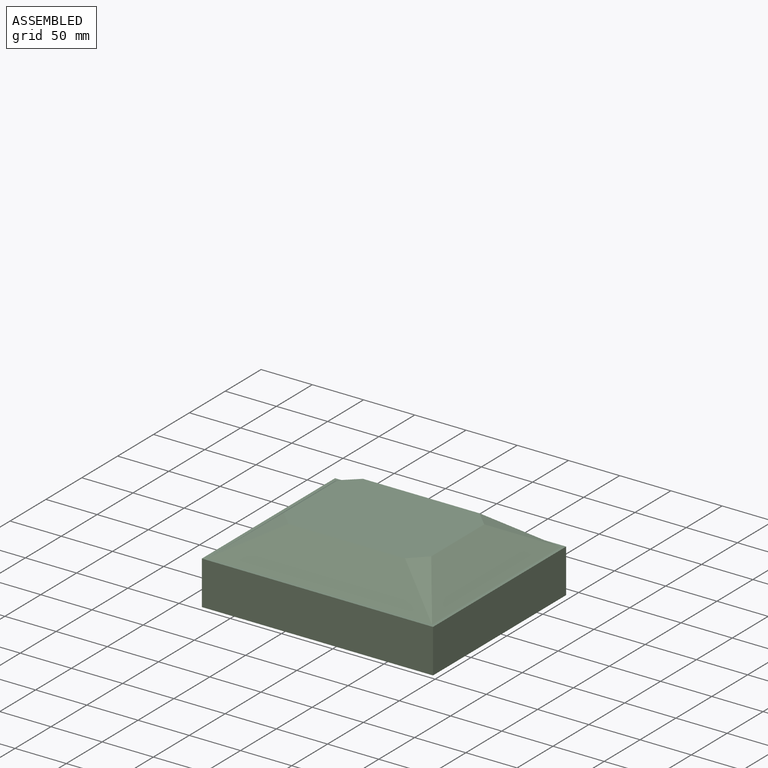
[diagram: assembled view]
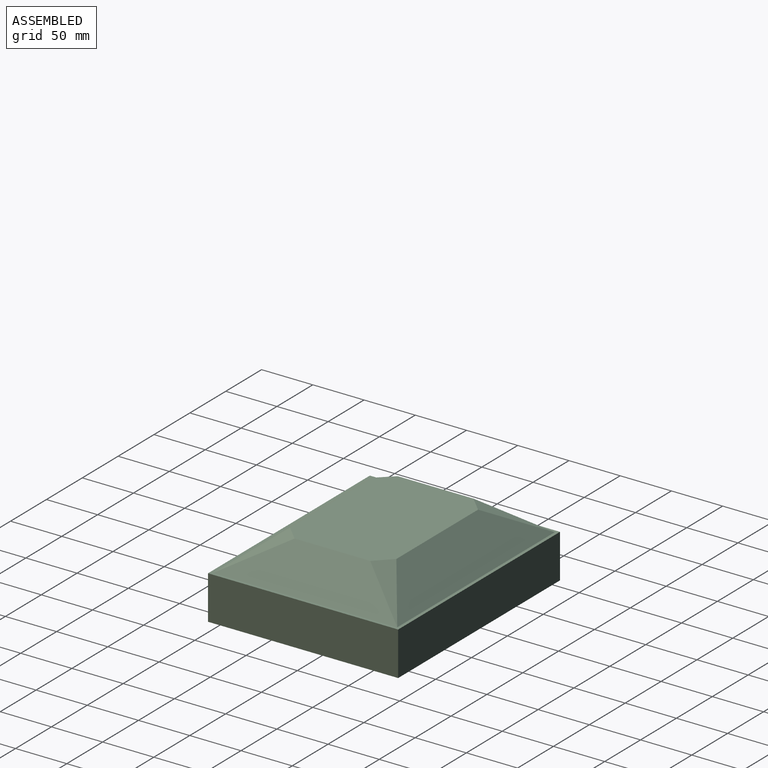
[diagram: assembled view, second angle]
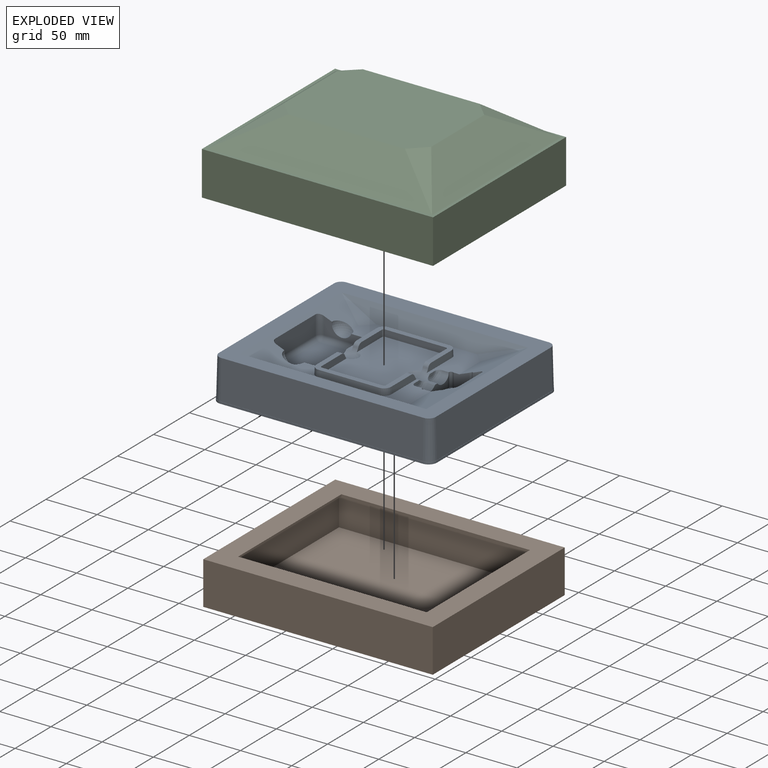
[diagram: exploded view]
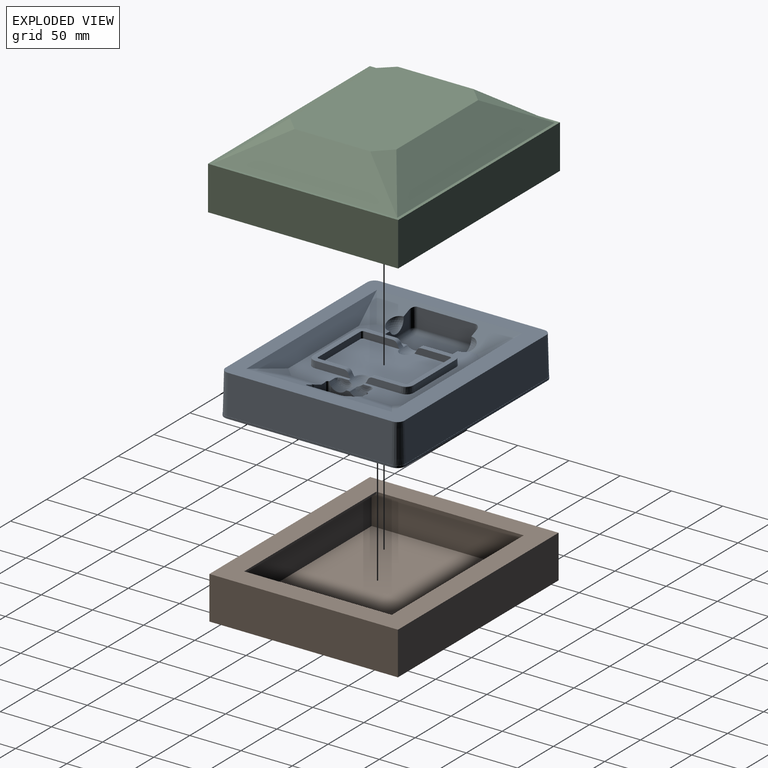
[diagram: exploded view, second angle]
ASSEMBLY  parts=3 mates=2
PART A: 249 faces, bbox 215.2x178.2x41.2 mm
  f0: plane 41x23mm, normal (0,0,1), area 831.1mm2, adj f99,f100,f101,f102,f103,f104,f105,f106
  f1: plane 119.91x53.15mm, normal (0,0,1), area 2299.3mm2, adj f3,f6,f16,f19,f22,f33,f35,f37
  f2: plane 119.91x53.15mm, normal (0,0,1), area 2299.3mm2, adj f3,f10,f16,f20,f23,f33,f34,f36
  f3: plane 142.85x32.38mm, normal (-0.37,0,0.93), area 3021.5mm2, adj f1,f2,f4,f5,f24,f38,f39,f84
  f4: plane 7.16x6.4mm, normal (0,-1,0.05), area 34.5mm2, adj f3,f7,f85,f103
  f5: plane 7.16x6.4mm, normal (0,1,0.05), area 34.5mm2, adj f3,f11,f84,f105
  f6: cylinder r=9.5mm len=16.57mm, axis (-1,0,0), area 148.4mm2, adj f1,f12,f94,f101,f107,f109
  f7: cylinder r=9.5mm len=16.88mm, axis (-1,0,0), area 162.7mm2, adj f4,f13,f93,f102,f103,f108
  f8: plane 7.19x3.07mm, normal (0,0,1), area 22.1mm2, adj f12,f14,f96,f107
  f9: plane 7.19x3.07mm, normal (0,0,1), area 22.1mm2, adj f13,f15,f91,f108
  f10: cylinder r=9.5mm len=16.57mm, axis (-1,0,0), area 148.4mm2, adj f2,f14,f98,f104,f107,f110
  f11: cylinder r=9.5mm len=16.88mm, axis (-1,0,0), area 162.7mm2, adj f5,f15,f89,f105,f106,f108
  f12: cylinder r=0.4mm len=7.19mm, axis (-1,0,0), area 2.6mm2, adj f6,f8,f95,f107
  f13: cylinder r=0.4mm len=7.19mm, axis (-1,0,0), area 2.6mm2, adj f7,f9,f92,f108
  f14: cylinder r=0.4mm len=7.19mm, axis (-1,0,0), area 2.6mm2, adj f8,f10,f97,f107
  f15: cylinder r=0.4mm len=7.19mm, axis (-1,0,0), area 2.6mm2, adj f9,f11,f90,f108
  f16: plane 56.24x8.23mm, normal (-1,0,0), area 433.4mm2, adj f1,f2,f49,f50,f54,f81
  f17: plane 34.86x6.47mm, normal (1,0,0), area 210.6mm2, adj f18,f64,f75,f80,f81
  f18: plane 73x35.06mm, normal (0,0,1), area 646.3mm2, adj f17,f19,f21,f22,f62,f63,f64,f70
  f19: plane 34.93x6.54mm, normal (-1,0,0.05), area 210.8mm2, adj f1,f18,f70,f80,f81
  f20: plane 34.93x6.54mm, normal (-1,0,0.05), area 210.8mm2, adj f2,f68,f69,f81,f82
  f21: plane 34.86x6.47mm, normal (-1,0,0), area 210.6mm2, adj f18,f62,f75,f76,f77
  f22: plane 34.93x6.54mm, normal (1,0,0.05), area 210.8mm2, adj f1,f18,f73,f76,f77
  f23: plane 34.93x6.54mm, normal (1,0,0.05), area 210.8mm2, adj f2,f68,f74,f77,f78
  f24: plane 211.61x174.61mm, normal (0,0,1), area 11063.1mm2, adj f3,f25,f26,f27,f28,f29,f30,f31
  f25: cone r=8mm half-angle=1.5deg, axis (0,0,-1), area 448mm2, adj f24,f26,f32,f119
  f26: plane 197.6x38mm, normal (0,-1,0.03), area 7511.4mm2, adj f24,f25,f27,f119
  f27: cone r=8mm half-angle=1.5deg, axis (0,0,-1), area 448mm2, adj f24,f26,f28,f119
  f28: plane 160.6x38mm, normal (1,0,0.03), area 6104.9mm2, adj f24,f27,f29,f119
  f29: cone r=8mm half-angle=1.5deg, axis (0,0,-1), area 448mm2, adj f24,f28,f30,f119
  f30: plane 197.6x38mm, normal (0,1,0.03), area 7511.4mm2, adj f24,f29,f31,f119
  f31: cone r=8mm half-angle=1.5deg, axis (0,0,-1), area 448mm2, adj f24,f30,f32,f119
  f32: plane 160.6x38mm, normal (-1,0,0.03), area 6104.9mm2, adj f24,f25,f31,f119
  f33: plane 142.81x32.34mm, normal (0.37,0,0.93), area 1913mm2, adj f1,f2,f24,f36,f37,f40,f41,f42
  f34: plane 182x12.47mm, normal (0,0.73,0.68), area 2399.2mm2, adj f2,f24,f36,f38
  f35: plane 182x12.47mm, normal (0,-0.73,0.68), area 2399.2mm2, adj f1,f24,f37,f39
  f36: plane 41.61x21.77mm, normal (0.22,0.22,0.95), area 282.9mm2, adj f2,f33,f34
  f37: plane 41.61x21.77mm, normal (0.22,-0.22,0.95), area 282.9mm2, adj f1,f33,f35
  f38: plane 41.61x21.77mm, normal (-0.22,0.22,0.95), area 282.9mm2, adj f2,f3,f34
  f39: plane 41.61x21.77mm, normal (-0.22,-0.22,0.95), area 282.9mm2, adj f1,f3,f35
  f40: plane 56.24x18.92mm, normal (1,0,0), area 1064.1mm2, adj f33,f41,f42,f57
  f41: cylinder r=4.88mm len=18.92mm, axis (0,0,-1), area 137.6mm2, adj f33,f40,f45,f59
  f42: cylinder r=4.88mm len=18.92mm, axis (0,0,-1), area 137.6mm2, adj f33,f40,f46,f55
  f43: cylinder r=10mm len=8.14mm, axis (0,0,-1), area 7.9mm2, adj f33,f46,f47
  f44: cylinder r=10mm len=8.14mm, axis (0,0,-1), area 7.9mm2, adj f33,f45,f48
  f45: plane 35.24x16.99mm, normal (0,1,0), area 268.9mm2, adj f2,f33,f41,f44,f48,f49,f58
  f46: plane 35.24x16.99mm, normal (0,-1,0), area 268.9mm2, adj f1,f33,f42,f43,f47,f50,f53
  f47: sphere r=10mm, area 247.5mm2, adj f1,f33,f43,f46
  f48: sphere r=10mm, area 247.5mm2, adj f2,f33,f44,f45
  f49: cylinder r=4.88mm len=8.23mm, axis (0,0,-1), area 63.1mm2, adj f2,f16,f45,f56
  f50: cylinder r=4.88mm len=8.23mm, axis (0,0,-1), area 63.1mm2, adj f1,f16,f46,f52
  f51: plane 56.4x35.4mm, normal (0,0,1), area 1996.6mm2, adj f52,f53,f54,f55,f56,f57,f58,f59
  f52: torus R=0.08mm, axis (0,0,1), area 37.1mm2, adj f50,f51,f53,f54
  f53: cylinder r=4.8mm len=35.24mm, axis (-1,0,0), area 265.7mm2, adj f46,f51,f52,f55
  f54: cylinder r=4.8mm len=56.24mm, axis (0,1,0), area 424.1mm2, adj f16,f51,f52,f56
  f55: torus R=0.08mm, axis (0,0,1), area 37.1mm2, adj f42,f51,f53,f57
  f56: torus R=0.08mm, axis (0,0,1), area 37.1mm2, adj f49,f51,f54,f58
  f57: cylinder r=4.8mm len=56.24mm, axis (0,-1,0), area 424.1mm2, adj f40,f51,f55,f59
  f58: cylinder r=4.8mm len=35.24mm, axis (1,0,0), area 265.7mm2, adj f45,f51,f56,f59
  f59: torus R=0.08mm, axis (0,0,1), area 37.1mm2, adj f41,f51,f57,f58
  f60: plane 34.86x6.47mm, normal (-1,0,0), area 210.6mm2, adj f67,f68,f75,f77,f78
  f61: plane 34.86x6.47mm, normal (1,0,0), area 210.6mm2, adj f65,f68,f75,f81,f82
  f62: cylinder r=2mm len=6.47mm, axis (0,0,1), area 20.3mm2, adj f18,f21,f63,f75
  f63: plane 59x6.47mm, normal (0,-1,0), area 381.6mm2, adj f18,f62,f64,f75
  f64: cylinder r=2mm len=6.47mm, axis (0,0,1), area 20.3mm2, adj f17,f18,f63,f75
  f65: cylinder r=2mm len=6.47mm, axis (0,0,1), area 20.3mm2, adj f61,f66,f68,f75
  f66: plane 59x6.47mm, normal (0,1,0), area 381.6mm2, adj f65,f67,f68,f75
  f67: cylinder r=2mm len=6.47mm, axis (0,0,1), area 20.3mm2, adj f60,f66,f68,f75
  f68: plane 73x35.06mm, normal (0,0,1), area 646.3mm2, adj f20,f23,f60,f61,f65,f66,f67,f69
  f69: cone r=7mm half-angle=3deg, axis (0,0,-1), area 72.9mm2, adj f2,f20,f68,f71
  f70: cone r=7mm half-angle=3deg, axis (0,0,-1), area 72.9mm2, adj f1,f18,f19,f72
  f71: plane 59x6.47mm, normal (0,-1,0.05), area 382.2mm2, adj f2,f68,f69,f74
  f72: plane 59x6.47mm, normal (0,1,0.05), area 382.2mm2, adj f1,f18,f70,f73
  f73: cone r=7mm half-angle=3deg, axis (0,0,-1), area 72.9mm2, adj f1,f18,f22,f72
  f74: cone r=7mm half-angle=3deg, axis (0,0,-1), area 72.9mm2, adj f2,f23,f68,f71
  f75: plane 88x63mm, normal (0,0,1), area 5380.3mm2, adj f17,f21,f60,f61,f62,f63,f64,f65
  f76: cylinder r=5mm len=5.17mm, axis (-1,0,0), area 30.3mm2, adj f18,f21,f22,f77
  f77: cylinder r=10mm len=18.59mm, axis (-1,0,0), area 187.8mm2, adj f1,f2,f21,f22,f23,f60,f76,f78
  f78: cylinder r=5mm len=5.17mm, axis (-1,0,0), area 30.3mm2, adj f23,f60,f68,f77
  f79: sphere r=10mm, area 94.2mm2, adj f75,f77
  f80: cylinder r=5mm len=5.17mm, axis (1,0,0), area 30.3mm2, adj f17,f18,f19,f81
  f81: cylinder r=10mm len=18.59mm, axis (1,0,0), area 200.9mm2, adj f1,f2,f16,f17,f19,f20,f61,f80
  f82: cylinder r=5mm len=5.17mm, axis (1,0,0), area 30.3mm2, adj f20,f61,f68,f81
  f83: sphere r=10mm, area 94.2mm2, adj f75,f81
  f84: cylinder r=4mm len=8.09mm, axis (0.05,-0.05,1), area 45.2mm2, adj f3,f5,f88,f89
  f85: cylinder r=4mm len=8.09mm, axis (-0.05,-0.05,-1), area 45.2mm2, adj f3,f4,f88,f93
  f86: plane 9.02x3.25mm, normal (1,0,0.05), area 21mm2, adj f1,f77,f94
  f87: plane 9.02x3.25mm, normal (1,0,0.05), area 21mm2, adj f2,f77,f98
  f88: plane 30.31x13.22mm, normal (-1,0,0.05), area 341.8mm2, adj f3,f84,f85,f89,f90,f91,f92,f93
  f89: bspline ~16.88x8.99mm, area 118.3mm2, adj f11,f84,f88,f90
  f90: bspline ~4.08x4.06mm, area 10.3mm2, adj f15,f88,f89,f91
  f91: cylinder r=4mm len=3.99mm, axis (0,-1,0), area 18.6mm2, adj f9,f88,f90,f92
  f92: bspline ~4.08x4.06mm, area 10.3mm2, adj f13,f88,f91,f93
  f93: bspline ~16.88x8.99mm, area 118.3mm2, adj f7,f85,f88,f92
  f94: bspline ~16.57x7.86mm, area 103.6mm2, adj f1,f6,f77,f86,f95
  f95: bspline ~3.5x2.13mm, area 1.8mm2, adj f12,f77,f94,f96
  f96: cylinder r=4mm len=3.07mm, axis (0,1,0), area 6mm2, adj f8,f77,f95,f97
  f97: bspline ~3.5x2.13mm, area 1.7mm2, adj f14,f77,f96,f98
  f98: bspline ~16.57x7.86mm, area 103.6mm2, adj f2,f10,f77,f87,f97
  f99: cylinder r=3mm len=17.94mm, axis (0,0,-1), area 23.9mm2, adj f0,f3,f105,f112
  f100: cylinder r=3mm len=17.94mm, axis (0,0,-1), area 23.9mm2, adj f0,f3,f103,f113
  f101: cylinder r=3mm len=11.54mm, axis (0,0,-1), area 14.3mm2, adj f0,f6,f107,f109
  f102: cylinder r=3mm len=11.54mm, axis (0,0,-1), area 14.3mm2, adj f0,f7,f103,f108
  f103: cylinder r=2mm len=19.06mm, axis (0,0,-1), area 85.7mm2, adj f0,f3,f4,f7,f100,f102
  f104: cylinder r=3mm len=11.54mm, axis (0,0,-1), area 14.3mm2, adj f0,f10,f107,f110
  f105: cylinder r=2mm len=19.06mm, axis (0,0,-1), area 85.7mm2, adj f0,f3,f5,f11,f99,f106
  f106: cylinder r=3mm len=11.54mm, axis (0,0,-1), area 14.3mm2, adj f0,f11,f105,f108
  f107: plane 32.64x10.18mm, normal (1,0,0), area 255.4mm2, adj f0,f6,f8,f10,f12,f14,f101,f104
  f108: plane 32.64x10.18mm, normal (-1,0,0), area 255.4mm2, adj f0,f7,f9,f11,f13,f15,f102,f106
  f109: cylinder r=2mm len=13.53mm, axis (0,0,-1), area 66.1mm2, adj f0,f1,f6,f101,f114
  f110: cylinder r=2mm len=13.53mm, axis (0,0,-1), area 66.1mm2, adj f0,f2,f10,f104,f111
  f111: cylinder r=3mm len=13.53mm, axis (0,0,-1), area 18.3mm2, adj f0,f2,f110,f112
  f112: plane 17.43x14.64mm, normal (0,1,0), area 217.3mm2, adj f0,f2,f3,f99,f111
  f113: plane 17.43x14.64mm, normal (0,-1,0), area 217.3mm2, adj f0,f1,f3,f100,f114
  f114: cylinder r=3mm len=13.53mm, axis (0,0,-1), area 18.3mm2, adj f0,f1,f109,f113
  f115: cylinder r=3mm len=6mm, axis (0,0,-1), area 37.7mm2, adj f0,f116
  f116: plane 6x6mm, normal (0,0,1), area 28.3mm2, adj f115
  f117: cylinder r=3mm len=6mm, axis (0,0,-1), area 37.7mm2, adj f0,f118
  f118: plane 6x6mm, normal (0,0,1), area 28.3mm2, adj f117
  f119: plane 214x177mm, normal (0,0,1), area 153.5mm2, adj f25,f26,f27,f28,f29,f30,f31,f32
  f120: cylinder r=8.2mm len=8.2mm, axis (0,0,1), area 25.8mm2, adj f119,f121,f127,f128
  f121: plane 197.6x2mm, normal (0,-1,0), area 395.2mm2, adj f119,f120,f122,f128
  f122: cylinder r=8.2mm len=8.2mm, axis (0,0,1), area 25.8mm2, adj f119,f121,f123,f128
  f123: plane 160.6x2mm, normal (1,0,0), area 321.2mm2, adj f119,f122,f124,f128
  f124: cylinder r=8.2mm len=8.2mm, axis (0,0,1), area 25.8mm2, adj f119,f123,f125,f128
  f125: plane 197.6x2mm, normal (0,1,0), area 395.2mm2, adj f119,f124,f126,f128
  f126: cylinder r=8.2mm len=8.2mm, axis (0,0,1), area 25.8mm2, adj f119,f125,f127,f128
  f127: plane 160.6x2mm, normal (-1,0,0), area 321.2mm2, adj f119,f120,f126,f128
  f128: plane 214x177mm, normal (0,0,-1), area 1144.8mm2, adj f120,f121,f122,f123,f124,f125,f126,f127
  f129: plane 44x26mm, normal (0,0,-1), area 955.2mm2, adj f220,f221,f222,f223,f224,f225,f226,f227
  f130: plane 119.52x52.23mm, normal (0,0,-1), area 2481.5mm2, adj f132,f135,f141,f144,f147,f158,f160,f162
  f131: plane 119.52x52.23mm, normal (0,0,-1), area 2481.5mm2, adj f132,f139,f141,f145,f148,f158,f159,f161
  f132: plane 143.28x32.7mm, normal (0.37,0,-0.93), area 2899.3mm2, adj f130,f131,f133,f134,f149,f163,f164,f209
  f133: plane 6.07x4.84mm, normal (0,1,-0.05), area 21.3mm2, adj f132,f136,f210,f224
  f134: plane 6.07x4.84mm, normal (0,-1,-0.05), area 21.3mm2, adj f132,f140,f209,f226
  f135: cylinder r=11mm len=18.47mm, axis (-1,0,0), area 125.6mm2, adj f130,f137,f217,f222,f228,f230
  f136: cylinder r=11mm len=19.2mm, axis (-1,0,0), area 144mm2, adj f133,f138,f216,f223,f224,f229
  f137: plane 5.69x2.05mm, normal (0,0,-1), area 11.7mm2, adj f135,f139,f217,f218,f219,f228
  f138: plane 5.7x2.06mm, normal (0,0,-1), area 11.7mm2, adj f136,f140,f214,f215,f216,f229
  f139: cylinder r=11mm len=18.47mm, axis (-1,0,0), area 125.6mm2, adj f131,f137,f219,f225,f228,f231
  f140: cylinder r=11mm len=19.2mm, axis (-1,0,0), area 144mm2, adj f134,f138,f214,f226,f227,f229
  f141: plane 56.24x6.73mm, normal (1,0,0), area 346.7mm2, adj f130,f131,f174,f175,f179,f206
  f142: plane 34.25x6.47mm, normal (-1,0,0), area 205.8mm2, adj f143,f189,f200,f205,f206
  f143: plane 70.15x33.63mm, normal (0,0,-1), area 268.6mm2, adj f142,f144,f146,f147,f187,f188,f189,f195
  f144: plane 34.31x6.52mm, normal (1,0,-0.05), area 206.1mm2, adj f130,f143,f195,f205,f206
  f145: plane 34.31x6.52mm, normal (1,0,-0.05), area 206.1mm2, adj f131,f193,f194,f206,f207
  f146: plane 34.25x6.47mm, normal (1,0,0), area 205.8mm2, adj f143,f187,f200,f201,f202
  f147: plane 34.31x6.52mm, normal (-1,0,-0.05), area 206.1mm2, adj f130,f143,f198,f201,f202
  f148: plane 34.31x6.52mm, normal (-1,0,-0.05), area 206.1mm2, adj f131,f193,f199,f202,f203
  f149: plane 208.69x171.69mm, normal (0,0,-1), area 9640.8mm2, adj f132,f150,f151,f152,f153,f154,f155,f156
  f150: cone r=6.5mm half-angle=1.5deg, axis (0,0,-1), area 360.7mm2, adj f149,f151,f157,f240
  f151: plane 197.6x38mm, normal (0,1,-0.03), area 7511.4mm2, adj f149,f150,f152,f240
  f152: cone r=6.5mm half-angle=1.5deg, axis (0,0,-1), area 360.7mm2, adj f149,f151,f153,f240
  f153: plane 160.6x38mm, normal (-1,0,-0.03), area 6104.9mm2, adj f149,f152,f154,f240
  f154: cone r=6.5mm half-angle=1.5deg, axis (0,0,-1), area 360.7mm2, adj f149,f153,f155,f240
  f155: plane 197.6x38mm, normal (0,-1,-0.03), area 7511.4mm2, adj f149,f154,f156,f240
  f156: cone r=6.5mm half-angle=1.5deg, axis (0,0,-1), area 360.7mm2, adj f149,f155,f157,f240
  f157: plane 160.6x38mm, normal (1,0,-0.03), area 6104.9mm2, adj f149,f150,f156,f240
  f158: plane 143.17x32.59mm, normal (-0.37,0,-0.93), area 1743.1mm2, adj f130,f131,f149,f161,f162,f165,f166,f167
  f159: plane 181.38x12.47mm, normal (0,-0.73,-0.68), area 2388.7mm2, adj f131,f149,f161,f163
  f160: plane 181.38x12.47mm, normal (0,0.73,-0.68), area 2388.7mm2, adj f130,f149,f162,f164
  f161: plane 42.2x22.36mm, normal (-0.22,-0.22,-0.95), area 316.3mm2, adj f131,f149,f158,f159
  f162: plane 42.2x22.36mm, normal (-0.22,0.22,-0.95), area 316.3mm2, adj f130,f149,f158,f160
  f163: plane 42.2x22.36mm, normal (0.22,-0.22,-0.95), area 316.3mm2, adj f131,f132,f149,f159
  f164: plane 42.2x22.36mm, normal (0.22,0.22,-0.95), area 316.3mm2, adj f130,f132,f149,f160
  f165: plane 56.24x17.9mm, normal (-1,0,0), area 1006.8mm2, adj f158,f166,f167,f182
  f166: cylinder r=6.38mm len=17.9mm, axis (0,0,-1), area 166.7mm2, adj f158,f165,f170,f184
  f167: cylinder r=6.38mm len=17.9mm, axis (0,0,-1), area 166.7mm2, adj f158,f165,f171,f180
  f168: cylinder r=11.5mm len=4.37mm, axis (0,0,-1), area 1.4mm2, adj f158,f171,f172
  f169: cylinder r=11.5mm len=4.37mm, axis (0,0,-1), area 1.4mm2, adj f158,f170,f173
  f170: plane 35.24x15.38mm, normal (0,-1,0), area 204mm2, adj f131,f158,f166,f169,f173,f174,f183
  f171: plane 35.24x15.38mm, normal (0,1,0), area 204mm2, adj f130,f158,f167,f168,f172,f175,f178
  f172: sphere r=11.5mm, area 248.8mm2, adj f130,f158,f168,f171
  f173: sphere r=11.5mm, area 248.8mm2, adj f131,f158,f169,f170
  f174: cylinder r=6.38mm len=6.73mm, axis (0,0,-1), area 67.4mm2, adj f131,f141,f170,f181
  f175: cylinder r=6.38mm len=6.73mm, axis (0,0,-1), area 67.4mm2, adj f130,f141,f171,f177
  f176: plane 56.4x35.4mm, normal (0,0,-1), area 1996.6mm2, adj f177,f178,f179,f180,f181,f182,f183,f184
  f177: torus R=0.08mm, axis (0,0,1), area 63.6mm2, adj f175,f176,f178,f179
  f178: cylinder r=6.3mm len=35.24mm, axis (-1,0,0), area 348.8mm2, adj f171,f176,f177,f180
  f179: cylinder r=6.3mm len=56.24mm, axis (0,1,0), area 556.6mm2, adj f141,f176,f177,f181
  f180: torus R=0.08mm, axis (0,0,1), area 63.6mm2, adj f167,f176,f178,f182
  f181: torus R=0.08mm, axis (0,0,1), area 63.6mm2, adj f174,f176,f179,f183
  f182: cylinder r=6.3mm len=56.24mm, axis (0,-1,0), area 556.6mm2, adj f165,f176,f180,f184
  f183: cylinder r=6.3mm len=35.24mm, axis (1,0,0), area 348.8mm2, adj f170,f176,f181,f184
  f184: torus R=0.08mm, axis (0,0,1), area 63.6mm2, adj f166,f176,f182,f183
  f185: plane 34.25x6.47mm, normal (1,0,0), area 205.8mm2, adj f192,f193,f200,f202,f203
  f186: plane 34.25x6.47mm, normal (-1,0,0), area 205.8mm2, adj f190,f193,f200,f206,f207
  f187: cylinder r=3.5mm len=6.47mm, axis (0,0,1), area 35.6mm2, adj f143,f146,f188,f200
  f188: plane 59x6.47mm, normal (0,1,0), area 381.6mm2, adj f143,f187,f189,f200
  f189: cylinder r=3.5mm len=6.47mm, axis (0,0,1), area 35.6mm2, adj f142,f143,f188,f200
  f190: cylinder r=3.5mm len=6.47mm, axis (0,0,1), area 35.6mm2, adj f186,f191,f193,f200
  f191: plane 59x6.47mm, normal (0,-1,0), area 381.6mm2, adj f190,f192,f193,f200
  f192: cylinder r=3.5mm len=6.47mm, axis (0,0,1), area 35.6mm2, adj f185,f191,f193,f200
  f193: plane 70.15x33.63mm, normal (0,0,-1), area 268.6mm2, adj f145,f148,f185,f186,f190,f191,f192,f194
  f194: cone r=5.5mm half-angle=3deg, axis (0,0,-1), area 58.5mm2, adj f131,f145,f193,f196
  f195: cone r=5.5mm half-angle=3deg, axis (0,0,-1), area 58.5mm2, adj f130,f143,f144,f197
  f196: plane 59x6.47mm, normal (0,1,-0.05), area 382.2mm2, adj f131,f193,f194,f199
  f197: plane 59x6.47mm, normal (0,-1,-0.05), area 382.2mm2, adj f130,f143,f195,f198
  f198: cone r=5.5mm half-angle=3deg, axis (0,0,-1), area 58.5mm2, adj f130,f143,f147,f197
  f199: cone r=5.5mm half-angle=3deg, axis (0,0,-1), area 58.5mm2, adj f131,f148,f193,f196
  f200: plane 91x66mm, normal (0,0,-1), area 5760.5mm2, adj f142,f146,f185,f186,f187,f188,f189,f190
  f201: cylinder r=3.5mm len=3.25mm, axis (-1,0,0), area 8.9mm2, adj f143,f146,f147,f202
  f202: cylinder r=11.5mm len=21.38mm, axis (-1,0,0), area 161.2mm2, adj f130,f131,f146,f147,f148,f185,f200,f201
  f203: cylinder r=3.5mm len=3.25mm, axis (-1,0,0), area 8.9mm2, adj f148,f185,f193,f202
  f204: sphere r=11.5mm, area 108.4mm2, adj f200,f202
  f205: cylinder r=3.5mm len=3.25mm, axis (1,0,0), area 8.9mm2, adj f142,f143,f144,f206
  f206: cylinder r=11.5mm len=21.38mm, axis (1,0,0), area 168.5mm2, adj f130,f131,f141,f142,f144,f145,f186,f200
  f207: cylinder r=3.5mm len=3.25mm, axis (1,0,0), area 8.9mm2, adj f145,f186,f193,f206
  f208: sphere r=11.5mm, area 108.4mm2, adj f200,f206
  f209: cylinder r=5.5mm len=7.16mm, axis (0.05,-0.05,1), area 51.3mm2, adj f132,f134,f213,f214
  f210: cylinder r=5.5mm len=7.16mm, axis (-0.05,-0.05,-1), area 51.3mm2, adj f132,f133,f213,f216
  f211: plane 6.91x1.82mm, normal (-1,0,-0.05), area 8.9mm2, adj f130,f202,f217
  f212: plane 6.91x1.82mm, normal (-1,0,-0.05), area 8.9mm2, adj f131,f202,f219
  f213: plane 30.21x12.26mm, normal (1,0,-0.05), area 310.9mm2, adj f132,f209,f210,f214,f215,f216
  f214: bspline ~21.43x10.66mm, area 185.3mm2, adj f138,f140,f209,f213,f215
  f215: cylinder r=5.5mm len=8.1mm, axis (0,-1,0), area 42.4mm2, adj f138,f213,f214,f216
  f216: bspline ~21.43x10.66mm, area 185.3mm2, adj f136,f138,f210,f213,f215
  f217: bspline ~18.78x8.97mm, area 143.9mm2, adj f130,f135,f137,f202,f211,f218
  f218: cylinder r=5.5mm len=2.53mm, axis (0,1,0), area 5mm2, adj f137,f202,f217,f219
  f219: bspline ~18.78x8.97mm, area 143.9mm2, adj f131,f137,f139,f202,f212,f218
  f220: cylinder r=1.5mm len=17.57mm, axis (0,0,-1), area 11.8mm2, adj f129,f132,f226,f233
  f221: cylinder r=1.5mm len=17.57mm, axis (0,0,-1), area 11.8mm2, adj f129,f132,f224,f234
  f222: cylinder r=1.5mm len=9.68mm, axis (0,0,-1), area 6.3mm2, adj f129,f135,f228,f230
  f223: cylinder r=1.5mm len=9.68mm, axis (0,0,-1), area 6.3mm2, adj f129,f136,f224,f229
  f224: cylinder r=3.5mm len=19.35mm, axis (0,0,-1), area 142.3mm2, adj f129,f132,f133,f136,f221,f223
  f225: cylinder r=1.5mm len=9.68mm, axis (0,0,-1), area 6.3mm2, adj f129,f139,f228,f231
  f226: cylinder r=3.5mm len=19.35mm, axis (0,0,-1), area 142.3mm2, adj f129,f132,f134,f140,f220,f227
  f227: cylinder r=1.5mm len=9.68mm, axis (0,0,-1), area 6.3mm2, adj f129,f140,f226,f229
  f228: plane 32.64x10.18mm, normal (-1,0,0), area 249.9mm2, adj f129,f135,f137,f139,f222,f225
  f229: plane 32.64x10.18mm, normal (1,0,0), area 249.9mm2, adj f129,f136,f138,f140,f223,f227
  f230: cylinder r=3.5mm len=13.53mm, axis (0,0,-1), area 112.1mm2, adj f129,f130,f135,f222,f235
  f231: cylinder r=3.5mm len=13.53mm, axis (0,0,-1), area 112.1mm2, adj f129,f131,f139,f225,f232
  f232: cylinder r=1.5mm len=13.53mm, axis (0,0,-1), area 9.2mm2, adj f129,f131,f231,f233
  f233: plane 17.31x14.64mm, normal (0,-1,0), area 216.2mm2, adj f129,f131,f132,f220,f232
  f234: plane 17.31x14.64mm, normal (0,1,0), area 216.2mm2, adj f129,f130,f132,f221,f235
  f235: cylinder r=1.5mm len=13.53mm, axis (0,0,-1), area 9.2mm2, adj f129,f130,f230,f234
  f236: cylinder r=4.5mm len=9mm, axis (0,0,-1), area 56.5mm2, adj f129,f237
  f237: plane 9x9mm, normal (0,0,-1), area 63.6mm2, adj f236
  f238: cylinder r=4.5mm len=9mm, axis (0,0,-1), area 56.5mm2, adj f129,f239
  f239: plane 9x9mm, normal (0,0,-1), area 63.6mm2, adj f238
  f240: plane 211x174mm, normal (0,0,-1), area 122.2mm2, adj f150,f151,f152,f153,f154,f155,f156,f157
  f241: cylinder r=6.7mm len=6.7mm, axis (0,0,1), area 5.3mm2, adj f128,f240,f242,f248
  f242: plane 197.6x0.5mm, normal (0,1,0), area 98.8mm2, adj f128,f240,f241,f243
  f243: cylinder r=6.7mm len=6.7mm, axis (0,0,1), area 5.3mm2, adj f128,f240,f242,f244
  f244: plane 160.6x0.5mm, normal (-1,0,0), area 80.3mm2, adj f128,f240,f243,f245
  f245: cylinder r=6.7mm len=6.7mm, axis (0,0,1), area 5.3mm2, adj f128,f240,f244,f246
  f246: plane 197.6x0.5mm, normal (0,-1,0), area 98.8mm2, adj f128,f240,f245,f247
  f247: cylinder r=6.7mm len=6.7mm, axis (0,0,1), area 5.3mm2, adj f128,f240,f246,f248
  f248: plane 160.6x0.5mm, normal (1,0,0), area 80.3mm2, adj f128,f240,f241,f247
PART B: 16 faces, bbox 224x184x42 mm
  f0: plane 224x42mm, normal (0,1,0), area 9408mm2, adj f1,f3,f4,f5
  f1: plane 184x42mm, normal (1,0,0), area 7728mm2, adj f0,f2,f4,f5
  f2: plane 224x42mm, normal (0,-1,0), area 9408mm2, adj f1,f3,f4,f5
  f3: plane 184x42mm, normal (-1,0,0), area 7728mm2, adj f0,f2,f4,f5
  f4: plane 224x184mm, normal (0,0,-1), area 41216mm2, adj f0,f1,f2,f3
  f5: plane 224x184mm, normal (0,0,1), area 14720mm2, adj f0,f1,f2,f3,f7,f8,f9,f10
  f6: plane 214x177mm, normal (0,0,-1), area 11382mm2, adj f7,f8,f9,f10,f12,f13,f14,f15
  f7: plane 144x2mm, normal (1,0,0), area 288mm2, adj f5,f6,f8,f10
  f8: plane 184x2mm, normal (0,-1,0), area 368mm2, adj f5,f6,f7,f9
  f9: plane 144x2mm, normal (-1,0,0), area 288mm2, adj f5,f6,f8,f10
  f10: plane 184x2mm, normal (0,1,0), area 368mm2, adj f5,f6,f7,f9
  f11: plane 214x177mm, normal (0,0,1), area 37878mm2, adj f12,f13,f14,f15
  f12: plane 214x38mm, normal (0,1,0), area 8132mm2, adj f6,f11,f13,f15
  f13: plane 177x38mm, normal (1,0,0), area 6726mm2, adj f6,f11,f12,f14
  f14: plane 214x38mm, normal (0,-1,0), area 8132mm2, adj f6,f11,f13,f15
  f15: plane 177x38mm, normal (-1,0,0), area 6726mm2, adj f6,f11,f12,f14
PART C: 29 faces, bbox 225.6x185.6x72.8 mm
  f0: plane 225.6x185.6mm, normal (0,0,1), area 2431.2mm2, adj f1,f2,f3,f4,f7,f10,f11,f14
  f1: plane 185.6x42.8mm, normal (-1,0,0), area 7943.7mm2, adj f0,f2,f4,f5
  f2: plane 225.6x42.8mm, normal (0,1,0), area 9655.7mm2, adj f0,f1,f3,f5
  f3: plane 185.6x42.8mm, normal (1,0,0), area 7943.7mm2, adj f0,f2,f4,f5
  f4: plane 225.6x42.8mm, normal (0,-1,0), area 9655.7mm2, adj f0,f1,f3,f5
  f5: plane 225.6x185.6mm, normal (0,0,-1), area 573.7mm2, adj f1,f2,f3,f4,f16,f17,f18,f19
  f6: plane 143.89x103.89mm, normal (0,0,1), area 14499.1mm2, adj f7,f8,f9,f10,f11,f12,f13,f14
  f7: plane 179.6x37.85mm, normal (-0.62,0,0.78), area 6121.9mm2, adj f0,f6,f8,f9
  f8: plane 52.85x52.85mm, normal (-0.3,0.3,0.91), area 751.1mm2, adj f6,f7,f10
  f9: plane 52.85x52.85mm, normal (-0.3,-0.3,0.91), area 751.1mm2, adj f6,f7,f11
  f10: plane 219.6x37.85mm, normal (0,0.62,0.78), area 8053.9mm2, adj f0,f6,f8,f12
  f11: plane 219.6x37.85mm, normal (0,-0.62,0.78), area 8053.9mm2, adj f0,f6,f9,f13
  f12: plane 52.85x52.85mm, normal (0.3,0.3,0.91), area 751.1mm2, adj f6,f10,f14
  f13: plane 52.85x52.85mm, normal (0.3,-0.3,0.91), area 751.1mm2, adj f6,f11,f14
  f14: plane 179.6x37.85mm, normal (0.62,0,0.78), area 6121.9mm2, adj f0,f6,f12,f13
  f15: plane 224.2x184.2mm, normal (0,0,-1), area 2051.8mm2, adj f16,f17,f18,f19,f21,f24,f25,f28
  f16: plane 184.2x42.1mm, normal (1,0,0), area 7754.8mm2, adj f5,f15,f17,f19
  f17: plane 224.2x42.1mm, normal (0,-1,0), area 9438.8mm2, adj f5,f15,f16,f18
  f18: plane 184.2x42.1mm, normal (-1,0,0), area 7754.8mm2, adj f5,f15,f17,f19
  f19: plane 224.2x42.1mm, normal (0,1,0), area 9438.8mm2, adj f5,f15,f16,f18
  f20: plane 143.4x103.4mm, normal (0,0,-1), area 14394.4mm2, adj f21,f22,f23,f24,f25,f26,f27,f28
  f21: plane 179.11x37.85mm, normal (0.62,0,-0.78), area 6123.9mm2, adj f15,f20,f22,f23,f24,f25
  f22: plane 51.91x51.91mm, normal (0.3,-0.3,-0.91), area 724.5mm2, adj f20,f21,f24
  f23: plane 51.91x51.91mm, normal (0.3,0.3,-0.91), area 724.5mm2, adj f20,f21,f25
  f24: plane 219.11x37.85mm, normal (0,-0.62,-0.78), area 8056mm2, adj f15,f20,f21,f22,f26,f28
  f25: plane 219.11x37.85mm, normal (0,0.62,-0.78), area 8056mm2, adj f15,f20,f21,f23,f27,f28
  f26: plane 51.91x51.91mm, normal (-0.3,-0.3,-0.91), area 724.5mm2, adj f20,f24,f28
  f27: plane 51.91x51.91mm, normal (-0.3,0.3,-0.91), area 724.5mm2, adj f20,f25,f28
  f28: plane 179.11x37.85mm, normal (-0.62,0,-0.78), area 6123.9mm2, adj f15,f20,f24,f25,f26,f27
PLACE A t=(0,1.5,12.47)mm
PLACE B t=(0.24,-0.21,-27.53)mm
PLACE C t=(-1722.96,-60.41,45.17)mm
MATE planar B.f5 <-> C.f15  axis (0,0,1) through (0.24,-0.21,14.47)mm
MATE planar B.f6 <-> A.f24  axis (0,0,-1) through (0.24,4.78,12.47)mm
